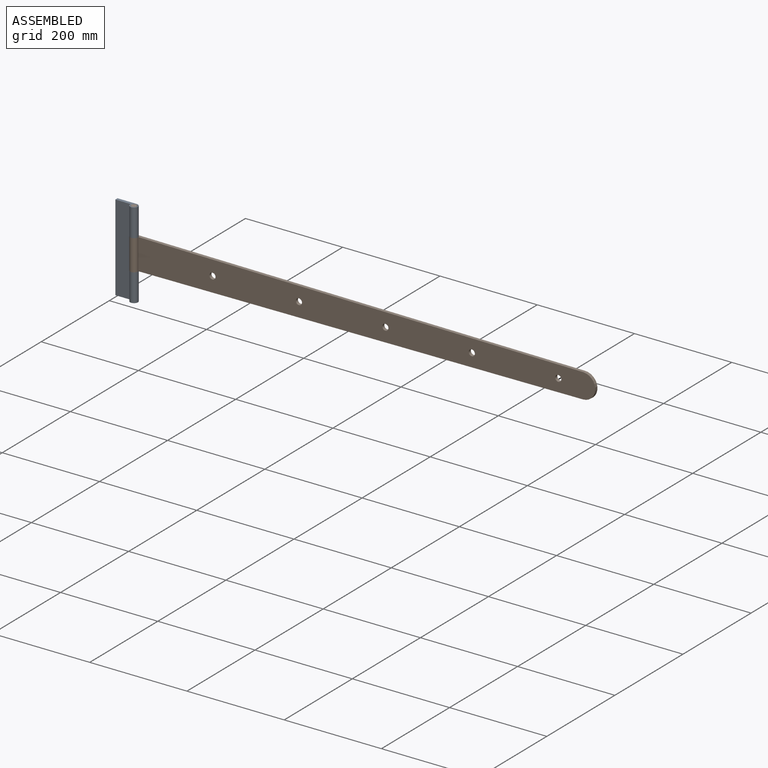
[diagram: assembled view]
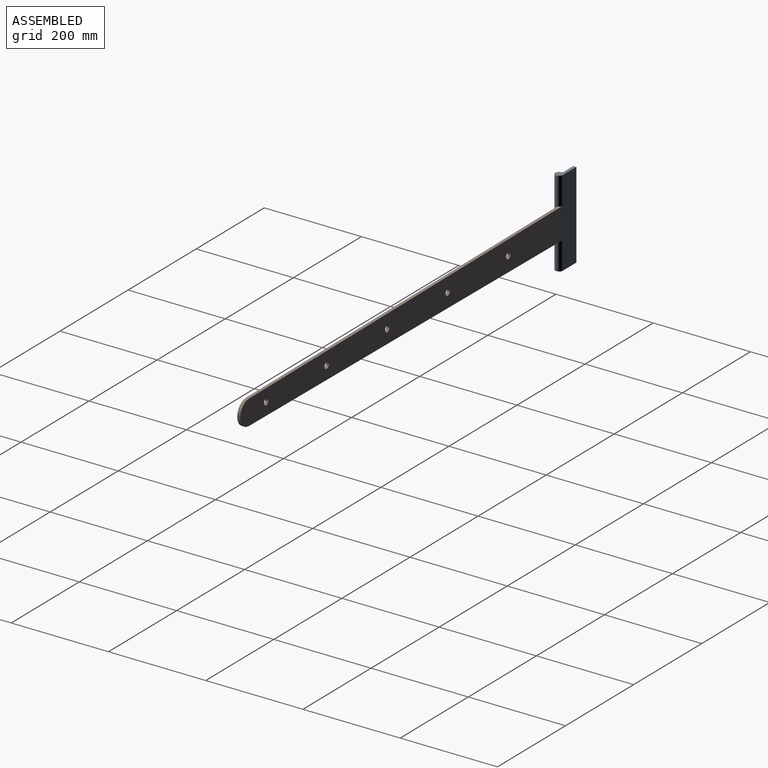
[diagram: assembled view, second angle]
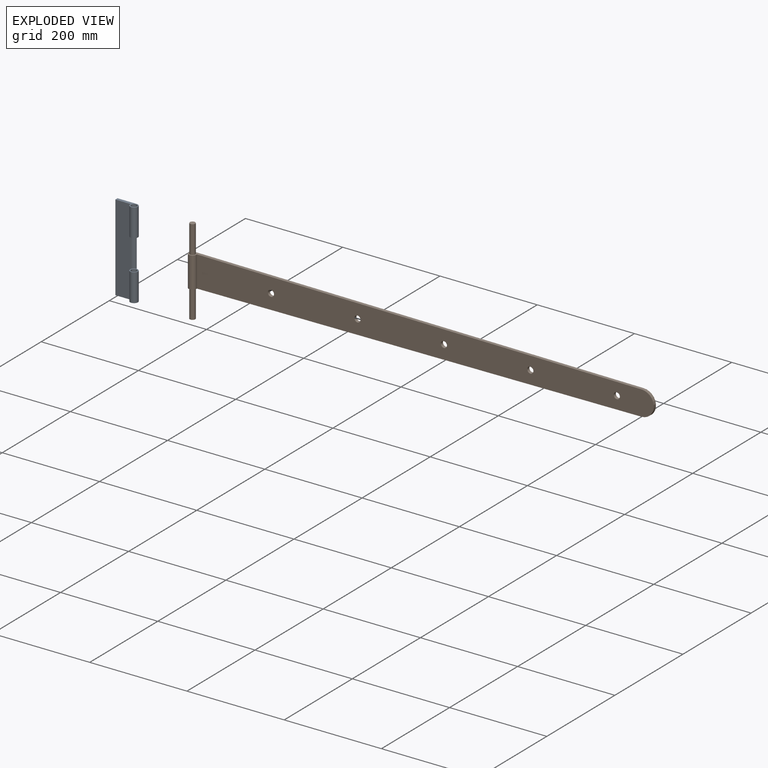
[diagram: exploded view]
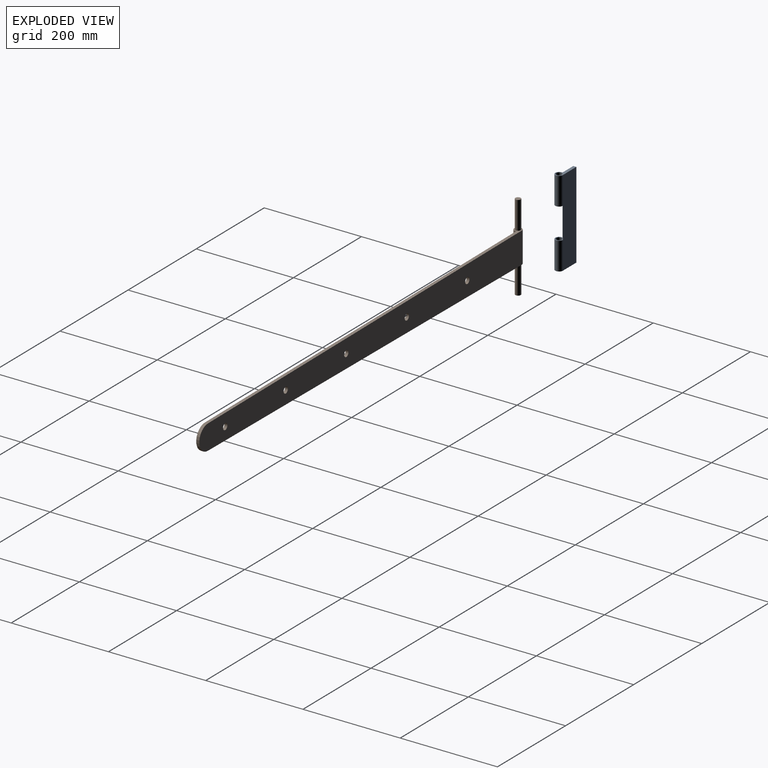
[diagram: exploded view, second angle]
ASSEMBLY  parts=2 mates=2
PART A: 12 faces, bbox 47.5x15.9x177.8 mm
  f0: cylinder r=7.94mm len=57.15mm, axis (0,0,-1), area 2229mm2, adj f2,f4,f8,f10
  f1: cylinder r=5.95mm len=57.15mm, axis (0,0,-1), area 2137.7mm2, adj f8,f10
  f2: plane 177.8x39.53mm, normal (0,1,0), area 7027.9mm2, adj f0,f3,f6,f7,f8,f9
  f3: cylinder r=7.94mm len=57.15mm, axis (0,0,-1), area 2229mm2, adj f2,f4,f7,f11
  f4: plane 177.8x31.75mm, normal (0,-1,0), area 5645.2mm2, adj f0,f3,f6,f7,f8,f9
  f5: cylinder r=5.95mm len=57.15mm, axis (0,0,-1), area 2137.7mm2, adj f7,f11
  f6: plane 177.8x6.35mm, normal (1,0,0), area 1129mm2, adj f2,f4,f7,f8
  f7: plane 47.46x15.88mm, normal (0,0,1), area 300.6mm2, adj f2,f3,f4,f5,f6
  f8: plane 47.46x15.88mm, normal (0,0,-1), area 300.6mm2, adj f0,f1,f2,f4,f6
  f9: cylinder r=7.94mm len=63.5mm, axis (0,0,1), area 690.2mm2, adj f2,f4,f10,f11
  f10: plane 15.88x15.88mm, normal (0,0,1), area 86.6mm2, adj f0,f1,f9
  f11: plane 15.88x15.88mm, normal (0,0,-1), area 86.6mm2, adj f3,f5,f9
PART B: 17 faces, bbox 955.5x15.9x177.8 mm
  f0: plane 914.58x6.35mm, normal (0.01,0,1), area 5807.7mm2, adj f2,f3,f4,f6
  f1: plane 914.58x6.35mm, normal (0.01,0,-1), area 5807.7mm2, adj f2,f3,f4,f7
  f2: cylinder r=25.4mm len=50.8mm, axis (0,1,0), area 504.5mm2, adj f0,f1,f3,f4
  f3: plane 939.8x63.5mm, normal (0,-1,0), area 52638.6mm2, adj f0,f1,f2,f5,f12,f13,f14,f15
  f4: plane 947.58x63.5mm, normal (0,1,0), area 53132.4mm2, adj f0,f1,f2,f5,f6,f7,f12,f13
  f5: cylinder r=7.94mm len=63.5mm, axis (0,0,-1), area 2476.7mm2, adj f3,f4,f6,f7
  f6: plane 15.88x15.88mm, normal (0,0,1), area 113.4mm2, adj f0,f4,f5,f10
  f7: plane 15.88x15.88mm, normal (0,0,-1), area 113.4mm2, adj f1,f4,f5,f9
  f8: plane 11.11x11.11mm, normal (0,0,-1), area 97mm2, adj f9
  f9: cylinder r=5.56mm len=57.15mm, axis (0,0,-1), area 1995.2mm2, adj f7,f8
  f10: cylinder r=5.56mm len=57.15mm, axis (0,0,-1), area 1995.2mm2, adj f6,f11
  f11: plane 11.11x11.11mm, normal (0,0,1), area 97mm2, adj f10
  f12: cylinder r=6.35mm len=12.7mm, axis (0,-1,0), area 253.4mm2, adj f3,f4
  f13: cylinder r=6.35mm len=12.7mm, axis (0,-1,0), area 253.4mm2, adj f3,f4
  f14: cylinder r=6.35mm len=12.7mm, axis (0,-1,0), area 253.4mm2, adj f3,f4
  f15: cylinder r=6.35mm len=12.7mm, axis (0,-1,0), area 253.4mm2, adj f3,f4
  f16: cylinder r=6.35mm len=12.7mm, axis (0,-1,0), area 253.4mm2, adj f3,f4
PLACE A rot(axis=(0,1,0),180deg) t=(-526.48,33.56,148.06)mm
PLACE B t=(-479.17,33.56,27.41)mm
MATE cylindrical A.f0 <-> B.f5  axis (0,0,1) through (-486.95,25.63,119.49)mm
MATE planar B.f6 <-> A.f0  axis (0,0,1) through (-486.29,26.32,90.91)mm
